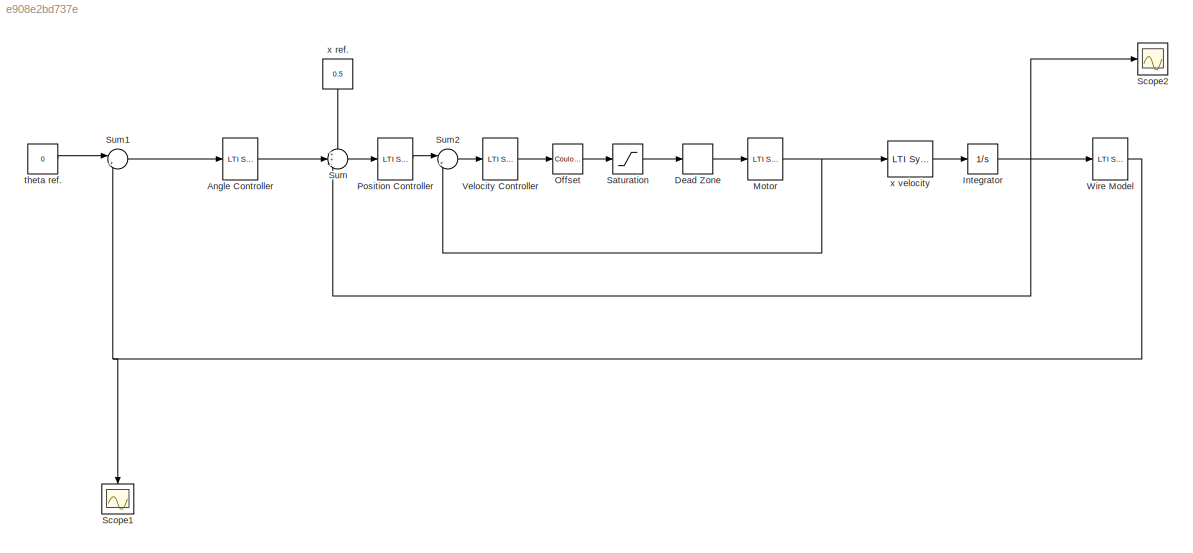
MODEL slx_e908e2bd737e
KIND model
CONFIG AbsTol = auto
CONFIG FixedStep = .00001
CONFIG MaxStep = auto
CONFIG MinStep = auto
CONFIG RelTol = 1e-9
CONFIG SampleTimeConstraint = Unconstrained
CONFIG Solver = ode113
CONFIG SolverMode = Auto
CONFIG SolverName = ode113
CONFIG StartTime = 0.0
CONFIG StopTime = 20
BLOCK [Reference] Angle Controller  REF=cstblocks/LTI System
  IC = []
  Ports = [1, 1]
  SourceBlock = cstblocks/LTI System
  SourceType = LTI Block
  sys = C2
BLOCK [DeadZone] Dead Zone
  LowerValue = -4.5
  UpperValue = 4.5
BLOCK [Integrator] Integrator
  Ports = [1, 1]
BLOCK [Reference] Motor  REF=cstblocks/LTI System
  IC = []
  Ports = [1, 1]
  SourceBlock = cstblocks/LTI System
  SourceType = LTI Block
  sys = Mx
BLOCK [Reference] Offset  REF=simulink/Discontinuities/Coulomb &
Viscous Friction
  Ports = [1, 1]
  SourceBlock = simulink/Discontinuities/Coulomb &\nViscous Friction
  SourceType = Coulombic and Viscous Friction
  gain = 1
  offset = 4.5
BLOCK [Reference] Position Controller  REF=cstblocks/LTI System
  IC = []
  Ports = [1, 1]
  SourceBlock = cstblocks/LTI System
  SourceType = LTI Block
  sys = C1
BLOCK [Saturate] Saturation
  InputPortMap = u0
  LowerLimit = -12.5
  Ports = [1, 1]
  UpperLimit = 12.5
BLOCK [Scope] Scope1
  Floating = off
  LimitDataPoints = off
  NumInputPorts = 1
  Ports = [1]
  TimeRange = 20
  YMax = 0.03
  YMin = -0.03
  ZoomMode = xonly
BLOCK [Scope] Scope2
  Floating = off
  LimitDataPoints = off
  NumInputPorts = 1
  Ports = [1]
  SaveName = ScopeData1
  TimeRange = 20
  YMax = 0.03
  YMin = -0.03
  ZoomMode = xonly
BLOCK [Sum] Sum
  IconShape = round
  InputSameDT = off
  Inputs = ++-
  OutDataTypeStr = Inherit: Inherit via internal rule
  Ports = [3, 1]
  SaturateOnIntegerOverflow = off
BLOCK [Sum] Sum1
  IconShape = round
  InputSameDT = off
  Inputs = |+-
  OutDataTypeStr = Inherit: Inherit via internal rule
  Ports = [2, 1]
  SaturateOnIntegerOverflow = off
BLOCK [Sum] Sum2
  IconShape = round
  InputSameDT = off
  Inputs = |+-
  OutDataTypeStr = Inherit: Inherit via internal rule
  Ports = [2, 1]
  SaturateOnIntegerOverflow = off
BLOCK [Reference] Velocity Controller  REF=cstblocks/LTI System
  IC = []
  Ports = [1, 1]
  SourceBlock = cstblocks/LTI System
  SourceType = LTI Block
  sys = C0
BLOCK [Reference] Wire Model  REF=cstblocks/LTI System
  IC = []
  Ports = [1, 1]
  SourceBlock = cstblocks/LTI System
  SourceType = LTI Block
  sys = W
BLOCK [Constant] theta ref.
  Value = 0
BLOCK [Constant] x ref.
  Value = 0.5
BLOCK [Reference] x velocity  REF=cstblocks/LTI System
  IC = []
  Ports = [1, 1]
  SourceBlock = cstblocks/LTI System
  SourceType = LTI Block
  sys = Grx * rrx
LINE Angle Controller:1 -> Sum:2
LINE Dead Zone:1 -> Motor:1
NET Integrator:1 -> Scope2:1, Sum:3, Wire Model:1
NET Motor:1 -> Sum2:2, x velocity:1
LINE Offset:1 -> Saturation:1
LINE Position Controller:1 -> Sum2:1
LINE Saturation:1 -> Dead Zone:1
LINE Sum1:1 -> Angle Controller:1
LINE Sum2:1 -> Velocity Controller:1
LINE Sum:1 -> Position Controller:1
LINE Velocity Controller:1 -> Offset:1
NET Wire Model:1 -> Scope1:1, Sum1:2
LINE theta ref.:1 -> Sum1:1
LINE x ref.:1 -> Sum:1
LINE x velocity:1 -> Integrator:1
note: NET lines group one-source signal fan-out (src -> all destinations, sorted); 1:1 wires keep LINE
